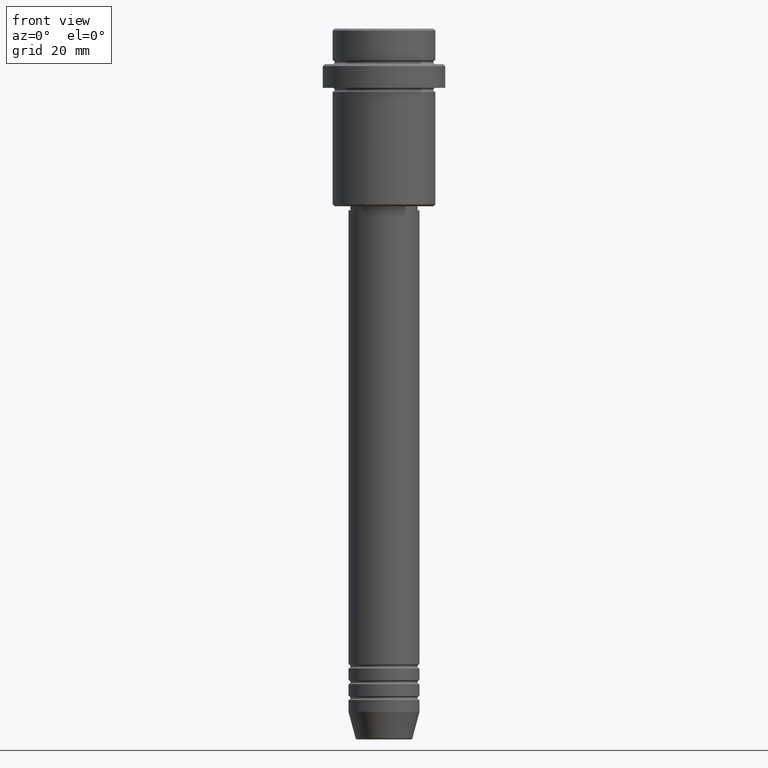
[diagram: clean part render]
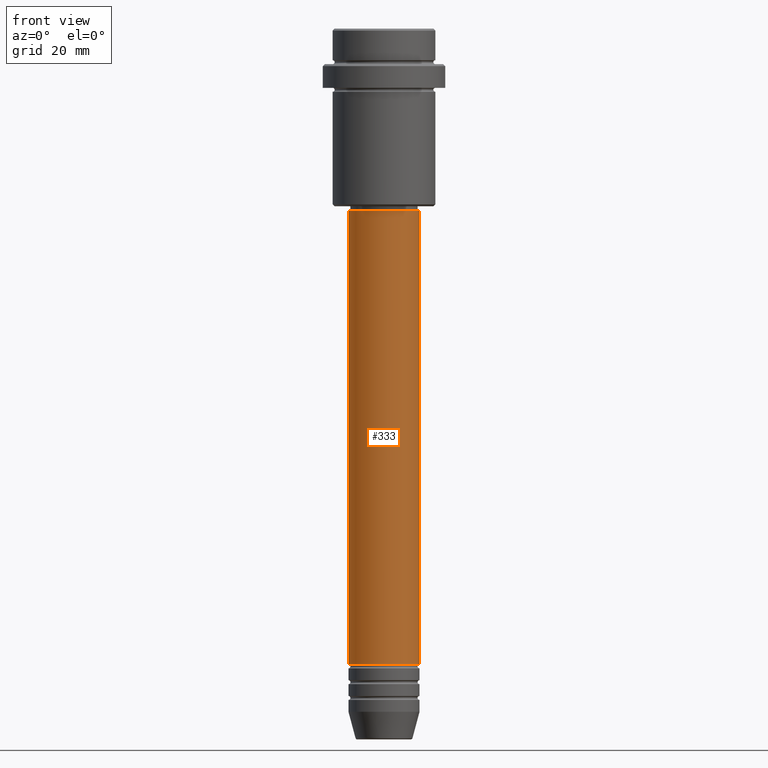
[diagram: same view with one face highlighted and labeled with its STEP entity id]
A machine part, front view. The second image highlights one B-rep face of the part: STEP entity #333.
In plain terms, the highlighted cylindrical surface (edge-blend (fillet) strip) has radius 9 mm, axis along (-0, -0, 1).
Its self-contained STEP definition (entity closure, byte-faithful):
#54 = EDGE_CURVE ( 'NONE', #1394, #634, #1036, .T. ) ;
#55 = CARTESIAN_POINT ( 'NONE',  ( 0.000000000000000000, 0.000000000000000000, 0.000000000000000000 ) ) ;
#64 = FACE_OUTER_BOUND ( 'NONE', #131, .T. ) ;
#101 = AXIS2_PLACEMENT_3D ( 'NONE', #644, #618, #861 ) ;
#127 = CARTESIAN_POINT ( 'NONE',  ( 9.000000000000001776, 0.000000000000000000, -46.00000000000000000 ) ) ;
#131 = EDGE_LOOP ( 'NONE', ( #1313, #1057, #588, #1031 ) ) ;
#133 = DIRECTION ( 'NONE',  ( -0.000000000000000000, -0.000000000000000000, 1.000000000000000000 ) ) ;
#148 = AXIS2_PLACEMENT_3D ( 'NONE', #55, #376, #715 ) ;
#172 = CARTESIAN_POINT ( 'NONE',  ( -9.000000000000001776, 1.102182119232617911E-15, -46.00000000000000000 ) ) ;
#212 = EDGE_CURVE ( 'NONE', #1064, #1171, #945, .T. ) ;
#265 = CYLINDRICAL_SURFACE ( 'NONE', #148, 9.000000000000001776 ) ;
#306 = VECTOR ( 'NONE', #133, 1000.000000000000000 ) ;
#329 = CARTESIAN_POINT ( 'NONE',  ( 9.000000000000001776, 0.000000000000000000, 0.000000000000000000 ) ) ;
#333 = ADVANCED_FACE ( 'NONE', ( #64 ), #265, .T. ) ;
#376 = DIRECTION ( 'NONE',  ( -0.000000000000000000, -0.000000000000000000, 1.000000000000000000 ) ) ;
#567 = LINE ( 'NONE', #575, #734 ) ;
#575 = CARTESIAN_POINT ( 'NONE',  ( -9.000000000000001776, 1.102182119232617911E-15, 0.000000000000000000 ) ) ;
#577 = CARTESIAN_POINT ( 'NONE',  ( 0.000000000000000000, 0.000000000000000000, -160.9999999999999147 ) ) ;
#588 = ORIENTED_EDGE ( 'NONE', *, *, #912, .T. ) ;
#618 = DIRECTION ( 'NONE',  ( -0.000000000000000000, -0.000000000000000000, 1.000000000000000000 ) ) ;
#634 = VERTEX_POINT ( 'NONE', #127 ) ;
#644 = CARTESIAN_POINT ( 'NONE',  ( 0.000000000000000000, 0.000000000000000000, -46.00000000000000000 ) ) ;
#663 = DIRECTION ( 'NONE',  ( 1.000000000000000000, 0.000000000000000000, 0.000000000000000000 ) ) ;
#715 = DIRECTION ( 'NONE',  ( 1.000000000000000000, 0.000000000000000000, 0.000000000000000000 ) ) ;
#734 = VECTOR ( 'NONE', #774, 1000.000000000000000 ) ;
#741 = EDGE_CURVE ( 'NONE', #1064, #1394, #567, .T. ) ;
#774 = DIRECTION ( 'NONE',  ( -0.000000000000000000, -0.000000000000000000, 1.000000000000000000 ) ) ;
#861 = DIRECTION ( 'NONE',  ( 1.000000000000000000, 0.000000000000000000, 0.000000000000000000 ) ) ;
#912 = EDGE_CURVE ( 'NONE', #1171, #634, #1305, .T. ) ;
#945 = CIRCLE ( 'NONE', #1079, 9.000000000000000000 ) ;
#946 = CARTESIAN_POINT ( 'NONE',  ( 9.000000000000000000, 0.000000000000000000, -160.9999999999999147 ) ) ;
#1031 = ORIENTED_EDGE ( 'NONE', *, *, #54, .F. ) ;
#1036 = CIRCLE ( 'NONE', #101, 9.000000000000001776 ) ;
#1057 = ORIENTED_EDGE ( 'NONE', *, *, #212, .T. ) ;
#1064 = VERTEX_POINT ( 'NONE', #1134 ) ;
#1079 = AXIS2_PLACEMENT_3D ( 'NONE', #577, #1216, #663 ) ;
#1134 = CARTESIAN_POINT ( 'NONE',  ( -9.000000000000000000, 1.102182119232617714E-15, -160.9999999999999147 ) ) ;
#1171 = VERTEX_POINT ( 'NONE', #946 ) ;
#1216 = DIRECTION ( 'NONE',  ( -0.000000000000000000, -0.000000000000000000, 1.000000000000000000 ) ) ;
#1305 = LINE ( 'NONE', #329, #306 ) ;
#1313 = ORIENTED_EDGE ( 'NONE', *, *, #741, .F. ) ;
#1394 = VERTEX_POINT ( 'NONE', #172 ) ;